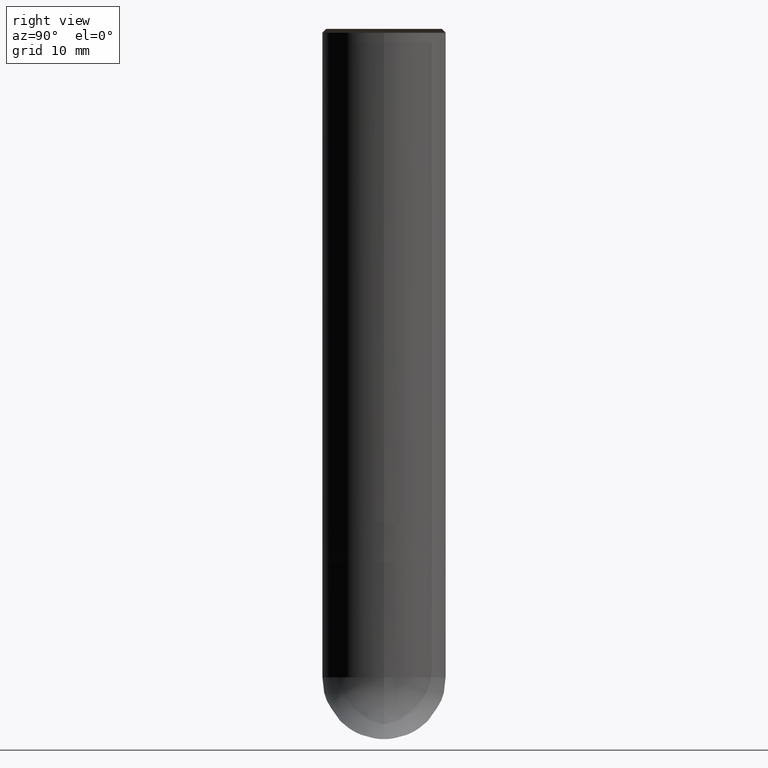
[diagram: clean part render]
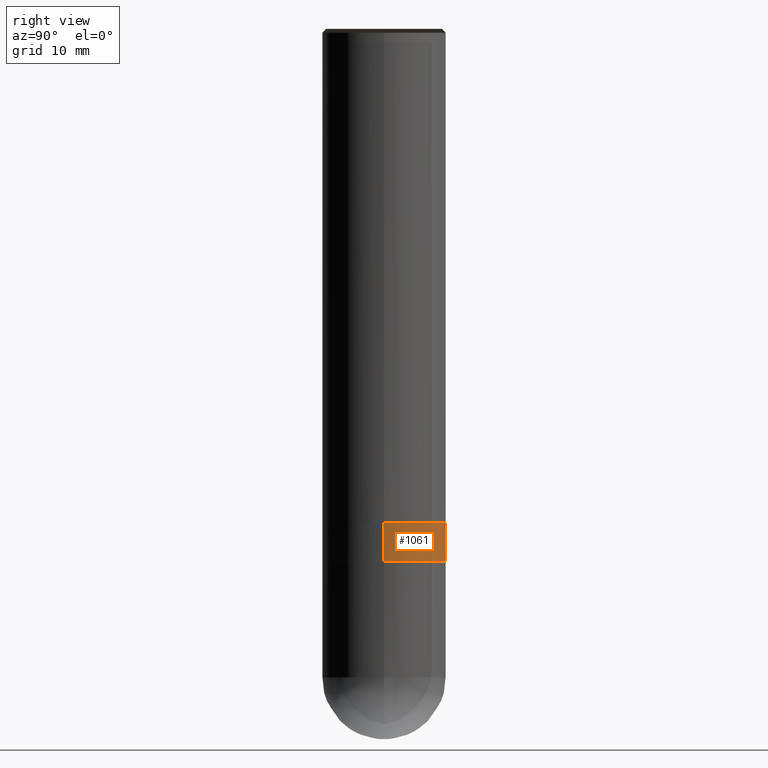
[diagram: same view with one face highlighted and labeled with its STEP entity id]
A machine part, right view. The second image highlights one B-rep face of the part: STEP entity #1061.
In plain terms, the highlighted face is a freeform B-spline surface patch.
Its self-contained STEP definition (entity closure, byte-faithful):
#871=CARTESIAN_POINT('',(8.0,0.0,-5.0));
#872=CARTESIAN_POINT('',(8.0,8.0,-5.0));
#873=CARTESIAN_POINT('',(0.0,8.0,-5.0));
#874=CARTESIAN_POINT('',(-8.0,8.0,-5.0));
#875=CARTESIAN_POINT('',(-8.0,0.0,-5.0));
#886=CARTESIAN_POINT('',(8.0,0.0,0.0));
#887=CARTESIAN_POINT('',(8.0,8.0,0.0));
#888=CARTESIAN_POINT('',(0.0,8.0,0.0));
#889=CARTESIAN_POINT('',(-8.0,8.0,0.0));
#890=CARTESIAN_POINT('',(-8.0,0.0,0.0));
#1042=(
BOUNDED_SURFACE()
B_SPLINE_SURFACE(1,2,(
(#871,#872,#873,#874,#875),
(#886,#887,#888,#889,#890)
), .UNSPECIFIED.,.F.,.F.,.F.)
B_SPLINE_SURFACE_WITH_KNOTS((2,2),(3,2,3),(
0.0,1.0),(
0.0,0.5,1.0), .UNSPECIFIED.)
GEOMETRIC_REPRESENTATION_ITEM()
RATIONAL_B_SPLINE_SURFACE(((1.0,0.707106781187,1.0,0.707106781187,1.0),
(1.0,0.707106781187,1.0,0.707106781187,1.0)
))
REPRESENTATION_ITEM('')
SURFACE()
);
#1043=(
BOUNDED_CURVE()
B_SPLINE_CURVE(2,(#875,#874,#873,#872,#871),.UNSPECIFIED.,.F.,.F.)
B_SPLINE_CURVE_WITH_KNOTS((3,2,3),
(0.0,0.5,1.0),.UNSPECIFIED.)
CURVE()
GEOMETRIC_REPRESENTATION_ITEM()
RATIONAL_B_SPLINE_CURVE((1.0,0.707106781187,1.0,0.707106781187,1.0))
REPRESENTATION_ITEM('')
);
#1044=(
BOUNDED_CURVE()
B_SPLINE_CURVE(1,(#871,#886),.UNSPECIFIED.,.F.,.F.)
B_SPLINE_CURVE_WITH_KNOTS((2,2),
(0.0,1.0),.UNSPECIFIED.)
CURVE()
GEOMETRIC_REPRESENTATION_ITEM()
RATIONAL_B_SPLINE_CURVE((1.0,1.0))
REPRESENTATION_ITEM('')
);
#1045=(
BOUNDED_CURVE()
B_SPLINE_CURVE(2,(#886,#887,#888,#889,#890),.UNSPECIFIED.,.F.,.F.)
B_SPLINE_CURVE_WITH_KNOTS((3,2,3),
(0.0,0.5,1.0),.UNSPECIFIED.)
CURVE()
GEOMETRIC_REPRESENTATION_ITEM()
RATIONAL_B_SPLINE_CURVE((1.0,0.707106781187,1.0,0.707106781187,1.0))
REPRESENTATION_ITEM('')
);
#1046=(
BOUNDED_CURVE()
B_SPLINE_CURVE(1,(#890,#875),.UNSPECIFIED.,.F.,.F.)
B_SPLINE_CURVE_WITH_KNOTS((2,2),
(0.0,1.0),.UNSPECIFIED.)
CURVE()
GEOMETRIC_REPRESENTATION_ITEM()
RATIONAL_B_SPLINE_CURVE((1.0,1.0))
REPRESENTATION_ITEM('')
);
#1047=VERTEX_POINT('',#871);
#1048=VERTEX_POINT('',#875);
#1049=VERTEX_POINT('',#886);
#1050=VERTEX_POINT('',#890);
#1051=EDGE_CURVE('',#1048,#1047,#1043,.T.);
#1052=EDGE_CURVE('',#1047,#1049,#1044,.T.);
#1053=EDGE_CURVE('',#1049,#1050,#1045,.T.);
#1054=EDGE_CURVE('',#1050,#1048,#1046,.T.);
#1055=ORIENTED_EDGE('',*,*,#1051,.T.);
#1056=ORIENTED_EDGE('',*,*,#1052,.T.);
#1057=ORIENTED_EDGE('',*,*,#1053,.T.);
#1058=ORIENTED_EDGE('',*,*,#1054,.T.);
#1059=EDGE_LOOP('',(#1055,#1056,#1057,#1058));
#1060=FACE_OUTER_BOUND('',#1059,.T.);
#1061=ADVANCED_FACE('',(#1060),#1042,.T.);